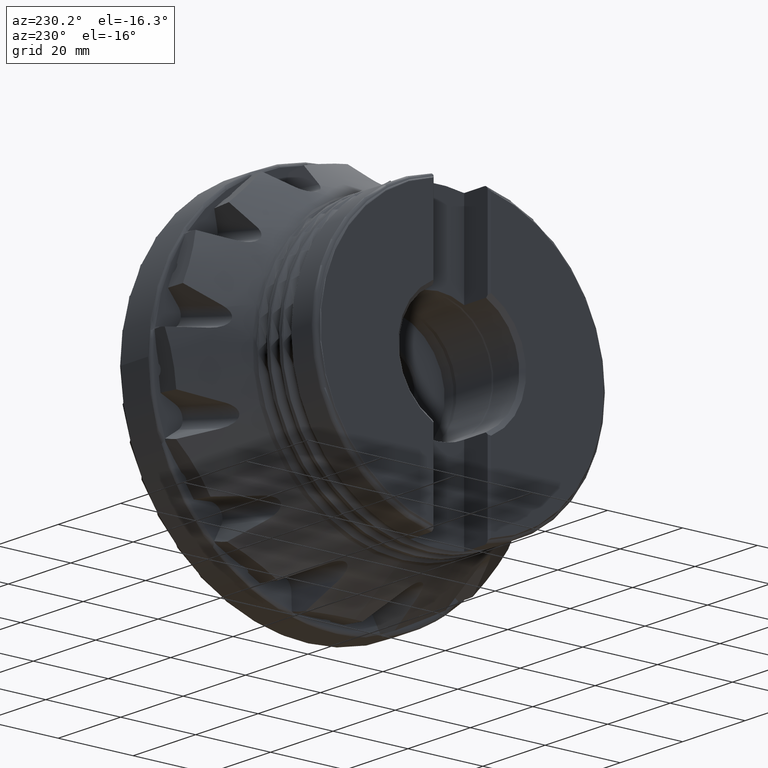
[diagram: clean part render]
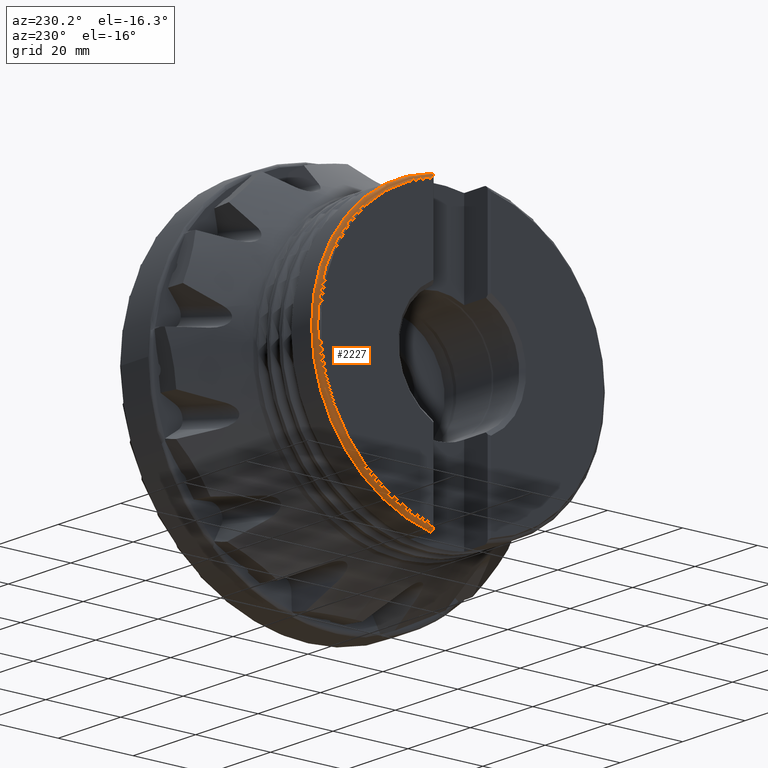
[diagram: same view with one face highlighted and labeled with its STEP entity id]
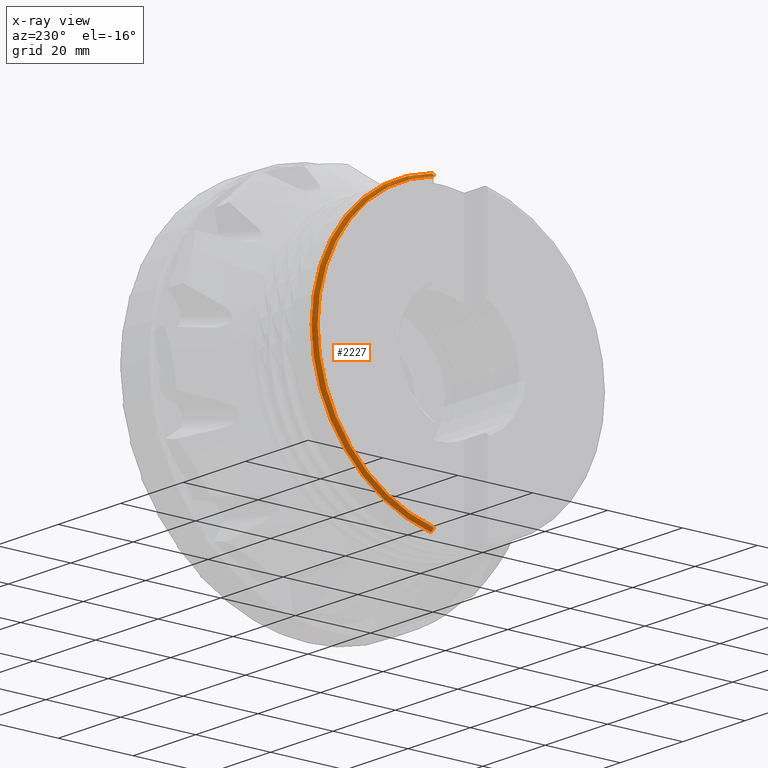
[diagram: x-ray of the same camera — body ghosted, the highlighted face saturated]
A machine part, auxiliary view. The second image highlights one B-rep face of the part: STEP entity #2227.
The next image is the same camera in x-ray: the body ghosted, the highlighted face saturated — about 0% of this face is hidden behind the body in this view.
In plain terms, the highlighted toroidal blend (fillet) surface has major radius 38.0005 mm and minor (blend) radius 1 mm.
Its self-contained STEP definition (entity closure, byte-faithful):
#181 = EDGE_CURVE ( 'NONE', #3527, #3646, #2831, .T. ) ;
#277 = CARTESIAN_POINT ( 'NONE',  ( -48.17913385324696700, 7.199999999999994000, 38.32274423216250600 ) ) ;
#334 = CARTESIAN_POINT ( 'NONE',  ( -48.89999999999997700, 7.199999999999994000, 37.56441585497378100 ) ) ;
#339 = CARTESIAN_POINT ( 'NONE',  ( -48.91003223229758100, 7.210032232297583800, -37.51849490863445900 ) ) ;
#344 = EDGE_CURVE ( 'NONE', #7860, #3527, #6509, .T. ) ;
#440 = B_SPLINE_CURVE_WITH_KNOTS ( 'NONE', 3,
 ( #11238, #5269, #1316, #8295 ),
 .UNSPECIFIED., .F., .F.,
 ( 4, 4 ),
 ( 0.0000000000000000000, 4.806271613677960600E-005 ),
 .UNSPECIFIED. ) ;
#745 = ORIENTED_EDGE ( 'NONE', *, *, #1189, .T. ) ;
#812 = DIRECTION ( 'NONE',  ( -1.779203565104417900E-016, 1.000000000000000000, 0.0000000000000000000 ) ) ;
#1189 = EDGE_CURVE ( 'NONE', #9616, #1365, #10472, .T. ) ;
#1316 = CARTESIAN_POINT ( 'NONE',  ( -48.90363539872624400, 7.203635398726244300, 37.54924228712167200 ) ) ;
#1335 = ORIENTED_EDGE ( 'NONE', *, *, #344, .T. ) ;
#1365 = VERTEX_POINT ( 'NONE', #9962 ) ;
#1446 = AXIS2_PLACEMENT_3D ( 'NONE', #4508, #4340, #3564 ) ;
#2223 = CARTESIAN_POINT ( 'NONE',  ( -48.84687460813636800, 7.199999999999994000, 37.77597008683836300 ) ) ;
#2227 = ADVANCED_FACE ( 'NONE', ( #10923 ), #7819, .T. ) ;
#2292 = CARTESIAN_POINT ( 'NONE',  ( -48.89999999999999900, 7.199999999999994000, -37.56441585497369600 ) ) ;
#2746 = B_SPLINE_CURVE_WITH_KNOTS ( 'NONE', 3,
 ( #9201, #2223, #12174, #6216, #277, #7204 ),
 .UNSPECIFIED., .F., .F.,
 ( 4, 2, 4 ),
 ( 0.001048750006314844000, 0.001695395406087252100, 0.002342040805859660300 ),
 .UNSPECIFIED. ) ;
#2831 = CIRCLE ( 'NONE', #1446, 38.20499999999999800 ) ;
#2861 = CARTESIAN_POINT ( 'NONE',  ( -48.39315493733440800, 7.199999999999993100, -38.24089574729672600 ) ) ;
#3387 = CARTESIAN_POINT ( 'NONE',  ( -48.90698627616983900, 7.206986276169833300, -37.53392584223211500 ) ) ;
#3527 = VERTEX_POINT ( 'NONE', #8407 ) ;
#3564 = DIRECTION ( 'NONE',  ( -1.816226646749700000E-016, 1.000000000000000000, 0.0000000000000000000 ) ) ;
#3646 = VERTEX_POINT ( 'NONE', #5644 ) ;
#3676 = ORIENTED_EDGE ( 'NONE', *, *, #10078, .T. ) ;
#3837 = CARTESIAN_POINT ( 'NONE',  ( -48.84751051305600800, 7.199999999999994000, -37.77343780665968600 ) ) ;
#4274 = CARTESIAN_POINT ( 'NONE',  ( -48.90363539872625900, 7.203635398726254900, -37.54924228712160800 ) ) ;
#4340 = DIRECTION ( 'NONE',  ( 1.000000000000000000, 1.110223024625157000E-016, -0.0000000000000000000 ) ) ;
#4351 = EDGE_LOOP ( 'NONE', ( #5738, #7322, #9659, #745, #3676, #1335 ) ) ;
#4364 = B_SPLINE_CURVE_WITH_KNOTS ( 'NONE', 3,
 ( #6792, #4805, #2861, #9820, #3837, #10808 ),
 .UNSPECIFIED., .F., .F.,
 ( 4, 2, 4 ),
 ( 0.006145485188158508700, 0.006791258069422140400, 0.007437030950685772100 ),
 .UNSPECIFIED. ) ;
#4508 = CARTESIAN_POINT ( 'NONE',  ( -48.91003223229758100, -5.430104391945534100E-015, 0.0000000000000000000 ) ) ;
#4805 = CARTESIAN_POINT ( 'NONE',  ( -48.17996749756692800, 7.199999999999994000, -38.32271778131917700 ) ) ;
#5269 = CARTESIAN_POINT ( 'NONE',  ( -48.90698627616983200, 7.206986276169828000, 37.53392584223215100 ) ) ;
#5644 = CARTESIAN_POINT ( 'NONE',  ( -48.91003223229758100, 7.210032232297579400, 37.51849490863445900 ) ) ;
#5738 = ORIENTED_EDGE ( 'NONE', *, *, #181, .T. ) ;
#5958 = AXIS2_PLACEMENT_3D ( 'NONE', #11891, #12833, #6917 ) ;
#6216 = CARTESIAN_POINT ( 'NONE',  ( -48.39120802317756900, 7.199999999999994000, 38.24243265969254000 ) ) ;
#6509 = B_SPLINE_CURVE_WITH_KNOTS ( 'NONE', 3,
 ( #2292, #4274, #3387, #339 ),
 .UNSPECIFIED., .F., .F.,
 ( 4, 4 ),
 ( 0.0000000000000000000, 4.806271613669172400E-005 ),
 .UNSPECIFIED. ) ;
#6743 = DIRECTION ( 'NONE',  ( -1.000000000000000000, -1.110223024625157000E-016, 0.0000000000000000000 ) ) ;
#6792 = CARTESIAN_POINT ( 'NONE',  ( -47.96233724523590800, 7.200000000000000200, -38.32962300884264600 ) ) ;
#6886 = CARTESIAN_POINT ( 'NONE',  ( -47.96233724523590800, 7.200000000000000200, 38.32962300884264600 ) ) ;
#6917 = DIRECTION ( 'NONE',  ( -1.110223024625157000E-016, 1.000000000000000000, 0.0000000000000000000 ) ) ;
#7204 = CARTESIAN_POINT ( 'NONE',  ( -47.96233724523590800, 7.200000000000000200, 38.32962300884264600 ) ) ;
#7322 = ORIENTED_EDGE ( 'NONE', *, *, #11264, .T. ) ;
#7417 = AXIS2_PLACEMENT_3D ( 'NONE', #12698, #6743, #812 ) ;
#7819 = TOROIDAL_SURFACE ( 'NONE', #5958, 38.00048585954768800, 1.000000000000003100 ) ;
#7860 = VERTEX_POINT ( 'NONE', #10638 ) ;
#8295 = CARTESIAN_POINT ( 'NONE',  ( -48.89999999999997700, 7.199999999999994000, 37.56441585497378100 ) ) ;
#8407 = CARTESIAN_POINT ( 'NONE',  ( -48.91003223229758100, 7.210032232297583800, -37.51849490863445900 ) ) ;
#9201 = CARTESIAN_POINT ( 'NONE',  ( -48.89999999999997700, 7.199999999999994000, 37.56441585497378100 ) ) ;
#9616 = VERTEX_POINT ( 'NONE', #6886 ) ;
#9659 = ORIENTED_EDGE ( 'NONE', *, *, #11248, .T. ) ;
#9820 = CARTESIAN_POINT ( 'NONE',  ( -48.72588908448582900, 7.199999999999994000, -37.96738159230030600 ) ) ;
#9962 = CARTESIAN_POINT ( 'NONE',  ( -47.96233724523590800, 7.200000000000000200, -38.32962300884264600 ) ) ;
#10078 = EDGE_CURVE ( 'NONE', #1365, #7860, #4364, .T. ) ;
#10472 = CIRCLE ( 'NONE', #7417, 38.99999999999999300 ) ;
#10638 = CARTESIAN_POINT ( 'NONE',  ( -48.89999999999999900, 7.199999999999994000, -37.56441585497369600 ) ) ;
#10808 = CARTESIAN_POINT ( 'NONE',  ( -48.89999999999999900, 7.199999999999994000, -37.56441585497369600 ) ) ;
#10923 = FACE_OUTER_BOUND ( 'NONE', #4351, .T. ) ;
#11238 = CARTESIAN_POINT ( 'NONE',  ( -48.91003223229758100, 7.210032232297579400, 37.51849490863445900 ) ) ;
#11248 = EDGE_CURVE ( 'NONE', #12872, #9616, #2746, .T. ) ;
#11264 = EDGE_CURVE ( 'NONE', #3646, #12872, #440, .T. ) ;
#11891 = CARTESIAN_POINT ( 'NONE',  ( -47.93116862261793900, -6.938893903907228400E-015, 0.0000000000000000000 ) ) ;
#12174 = CARTESIAN_POINT ( 'NONE',  ( -48.72748682843639000, 7.199999999999993100, 37.96613163893455600 ) ) ;
#12698 = CARTESIAN_POINT ( 'NONE',  ( -47.96233724523590100, -6.942354316154858900E-015, 0.0000000000000000000 ) ) ;
#12833 = DIRECTION ( 'NONE',  ( 1.000000000000000000, 1.110223024625157000E-016, -0.0000000000000000000 ) ) ;
#12872 = VERTEX_POINT ( 'NONE', #334 ) ;